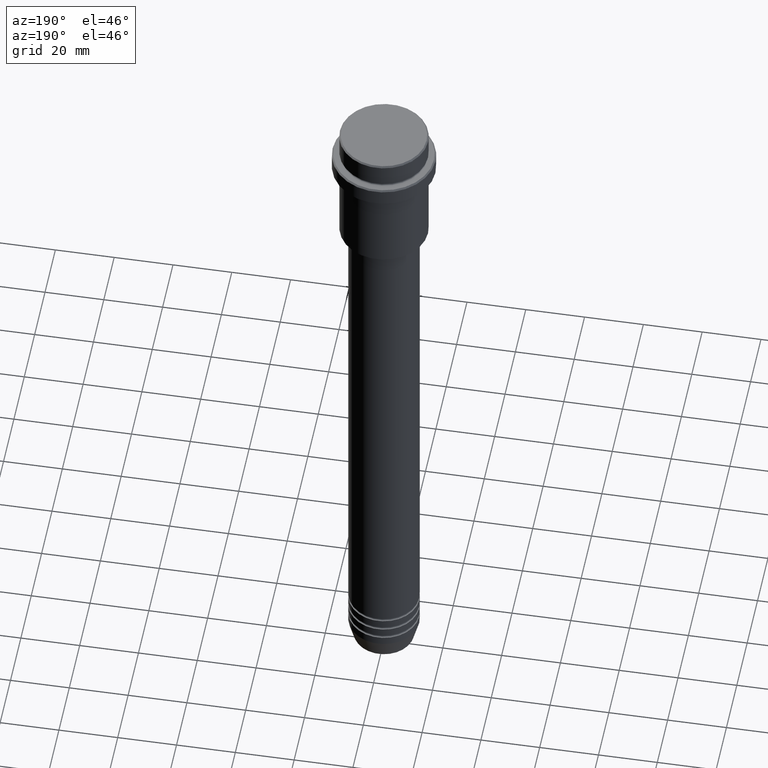
[diagram: clean part render]
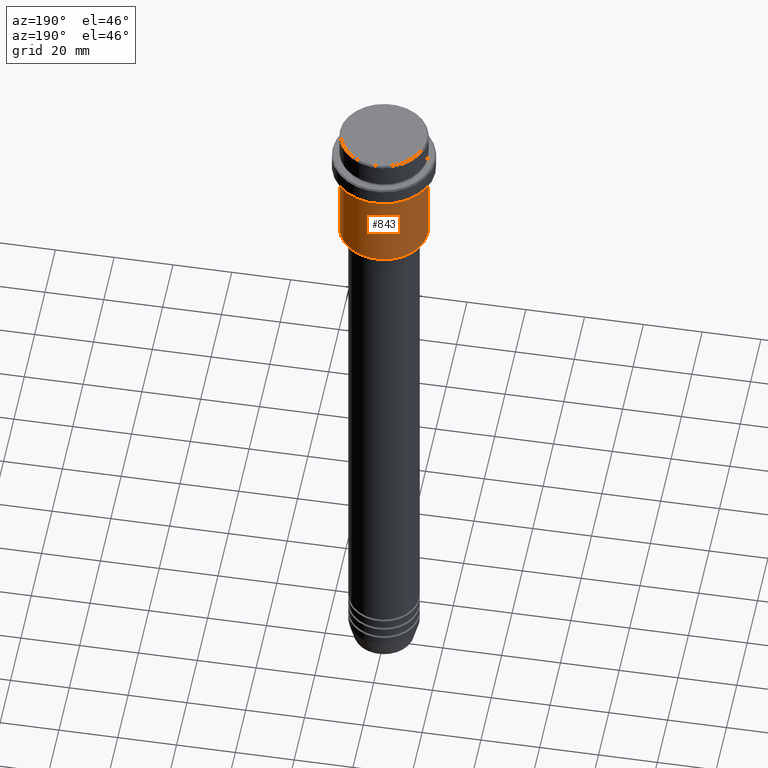
[diagram: same view with one face highlighted and labeled with its STEP entity id]
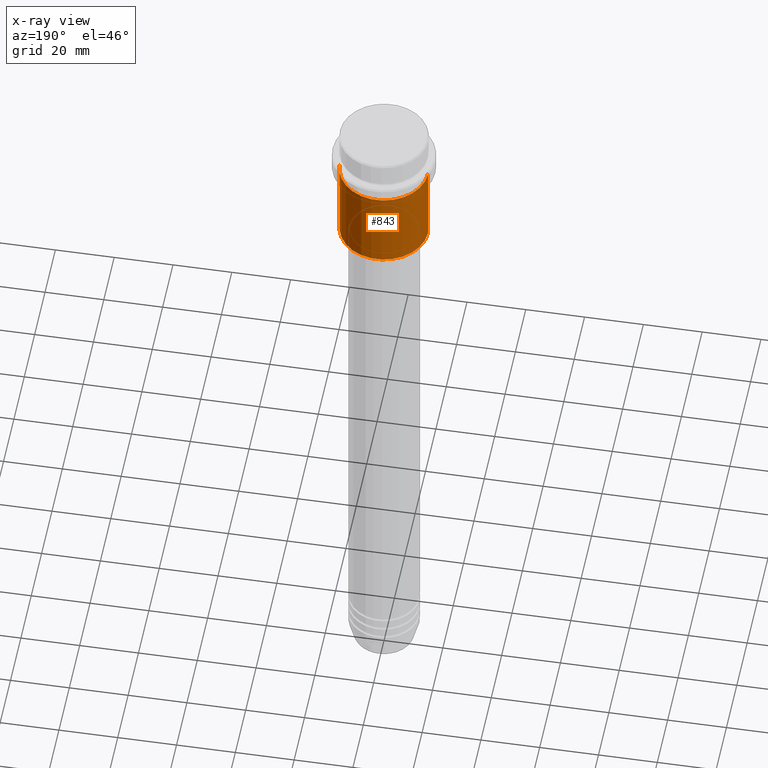
[diagram: x-ray of the same camera — body ghosted, the highlighted face saturated]
A machine part, auxiliary view. The second image highlights one B-rep face of the part: STEP entity #843.
The next image is the same camera in x-ray: the body ghosted, the highlighted face saturated — about 0% of this face is hidden behind the body in this view.
In plain terms, the highlighted cylindrical surface (partial cylindrical patch) has radius 15 mm, axis along (-0, -0, 1).
Its self-contained STEP definition (entity closure, byte-faithful):
#62 = DIRECTION ( 'NONE',  ( -1.000000000000000000, 0.000000000000000000, 0.000000000000000000 ) ) ;
#116 = EDGE_LOOP ( 'NONE', ( #482, #1061, #711, #180 ) ) ;
#168 = AXIS2_PLACEMENT_3D ( 'NONE', #483, #1028, #920 ) ;
#180 = ORIENTED_EDGE ( 'NONE', *, *, #224, .F. ) ;
#224 = EDGE_CURVE ( 'NONE', #353, #469, #1328, .T. ) ;
#244 = DIRECTION ( 'NONE',  ( 1.000000000000000000, 0.000000000000000000, 0.000000000000000000 ) ) ;
#326 = EDGE_CURVE ( 'NONE', #469, #1372, #1242, .T. ) ;
#340 = CARTESIAN_POINT ( 'NONE',  ( 15.00000000000000000, 0.000000000000000000, 0.000000000000000000 ) ) ;
#353 = VERTEX_POINT ( 'NONE', #812 ) ;
#368 = CARTESIAN_POINT ( 'NONE',  ( -15.00000000000000000, 1.836970198721029589E-15, 0.000000000000000000 ) ) ;
#381 = CYLINDRICAL_SURFACE ( 'NONE', #168, 15.00000000000000000 ) ;
#384 = CARTESIAN_POINT ( 'NONE',  ( 15.00000000000000178, 0.000000000000000000, -16.00000000000000000 ) ) ;
#392 = AXIS2_PLACEMENT_3D ( 'NONE', #890, #791, #244 ) ;
#469 = VERTEX_POINT ( 'NONE', #384 ) ;
#482 = ORIENTED_EDGE ( 'NONE', *, *, #1391, .T. ) ;
#483 = CARTESIAN_POINT ( 'NONE',  ( 0.000000000000000000, 0.000000000000000000, 0.000000000000000000 ) ) ;
#567 = DIRECTION ( 'NONE',  ( -0.000000000000000000, -0.000000000000000000, 1.000000000000000000 ) ) ;
#594 = FACE_OUTER_BOUND ( 'NONE', #116, .T. ) ;
#711 = ORIENTED_EDGE ( 'NONE', *, *, #326, .F. ) ;
#713 = CARTESIAN_POINT ( 'NONE',  ( -15.00000000000000355, 1.836970198721029983E-15, -16.00000000000000000 ) ) ;
#719 = CIRCLE ( 'NONE', #1101, 15.00000000000000000 ) ;
#791 = DIRECTION ( 'NONE',  ( -0.000000000000000000, -0.000000000000000000, 1.000000000000000000 ) ) ;
#812 = CARTESIAN_POINT ( 'NONE',  ( 15.00000000000000000, 0.000000000000000000, -44.49999999999997868 ) ) ;
#843 = ADVANCED_FACE ( 'NONE', ( #594 ), #381, .T. ) ;
#869 = VERTEX_POINT ( 'NONE', #927 ) ;
#871 = VECTOR ( 'NONE', #1016, 1000.000000000000000 ) ;
#890 = CARTESIAN_POINT ( 'NONE',  ( 0.000000000000000000, 0.000000000000000000, -16.00000000000000000 ) ) ;
#920 = DIRECTION ( 'NONE',  ( 1.000000000000000000, 0.000000000000000000, 0.000000000000000000 ) ) ;
#927 = CARTESIAN_POINT ( 'NONE',  ( -15.00000000000000000, 1.836970198721029589E-15, -44.49999999999997868 ) ) ;
#1016 = DIRECTION ( 'NONE',  ( -0.000000000000000000, -0.000000000000000000, 1.000000000000000000 ) ) ;
#1023 = LINE ( 'NONE', #368, #871 ) ;
#1028 = DIRECTION ( 'NONE',  ( -0.000000000000000000, -0.000000000000000000, 1.000000000000000000 ) ) ;
#1031 = VECTOR ( 'NONE', #567, 1000.000000000000000 ) ;
#1036 = CARTESIAN_POINT ( 'NONE',  ( 0.000000000000000000, 0.000000000000000000, -44.49999999999997868 ) ) ;
#1061 = ORIENTED_EDGE ( 'NONE', *, *, #1366, .T. ) ;
#1101 = AXIS2_PLACEMENT_3D ( 'NONE', #1036, #1119, #62 ) ;
#1119 = DIRECTION ( 'NONE',  ( -0.000000000000000000, -0.000000000000000000, 1.000000000000000000 ) ) ;
#1242 = CIRCLE ( 'NONE', #392, 15.00000000000000178 ) ;
#1328 = LINE ( 'NONE', #340, #1031 ) ;
#1366 = EDGE_CURVE ( 'NONE', #869, #1372, #1023, .T. ) ;
#1372 = VERTEX_POINT ( 'NONE', #713 ) ;
#1391 = EDGE_CURVE ( 'NONE', #353, #869, #719, .T. ) ;